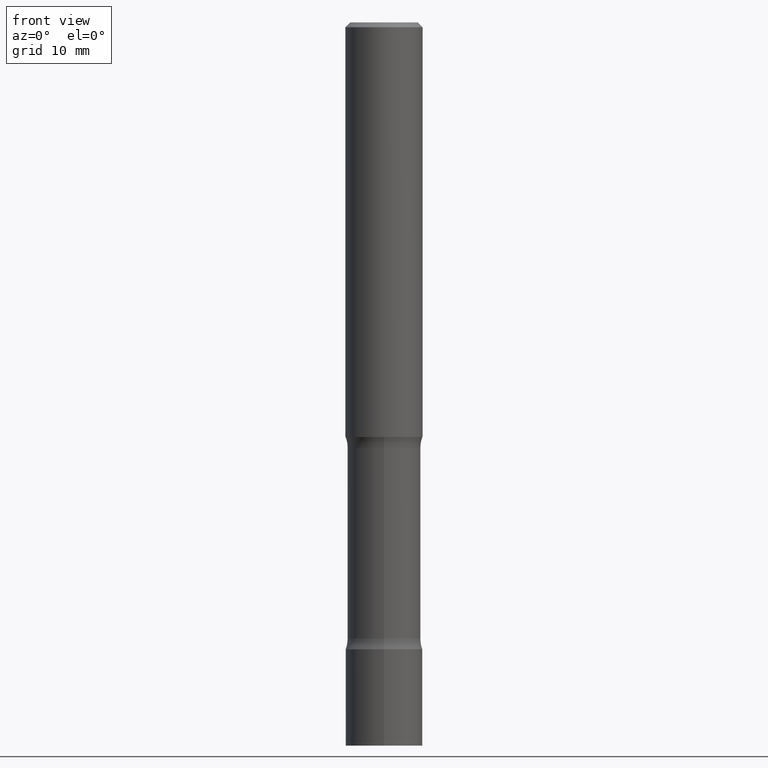
[diagram: clean part render]
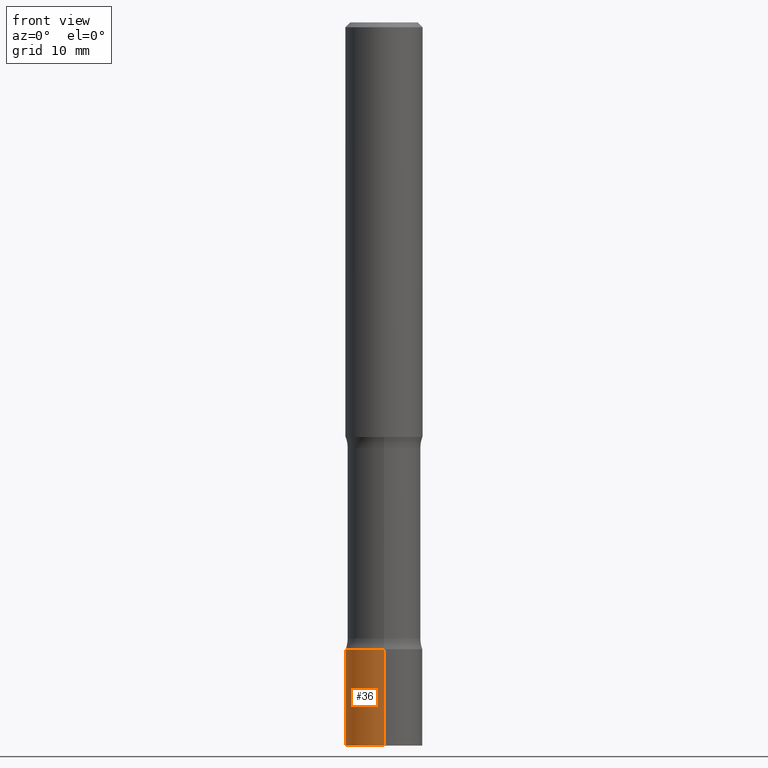
[diagram: same view with one face highlighted and labeled with its STEP entity id]
A machine part, front view. The second image highlights one B-rep face of the part: STEP entity #36.
In plain terms, the highlighted cylindrical surface (partial cylindrical patch) has radius 4.0005 mm, axis along (-0, 0, 1).
Its self-contained STEP definition (entity closure, byte-faithful):
#16 = ORIENTED_EDGE ( 'NONE', *, *, #503, .T. ) ;
#36 = ADVANCED_FACE ( 'NONE', ( #459 ), #493, .T. ) ;
#41 = CARTESIAN_POINT ( 'NONE',  ( -1.099816621735586494E-15, -0.1574999999999999456, 5.498613975020886768E-16 ) ) ;
#57 = DIRECTION ( 'NONE',  ( -2.445676802554542366E-29, 3.491183476203738463E-15, 1.000000000000000000 ) ) ;
#72 = VECTOR ( 'NONE', #159, 39.37007874015748143 ) ;
#82 = DIRECTION ( 'NONE',  ( -2.445676802554542646E-29, 3.491183476203738463E-15, 1.000000000000000000 ) ) ;
#109 = DIRECTION ( 'NONE',  ( -2.445676802554542366E-29, 3.491183476203738463E-15, 1.000000000000000000 ) ) ;
#111 = DIRECTION ( 'NONE',  ( -6.982962677686265922E-15, -1.000000000000000000, 3.491183476203738857E-15 ) ) ;
#120 = EDGE_CURVE ( 'NONE', #480, #462, #228, .T. ) ;
#157 = CARTESIAN_POINT ( 'NONE',  ( -1.099816621735514116E-15, -0.1575000000000102707, -2.952799999999998981 ) ) ;
#159 = DIRECTION ( 'NONE',  ( -2.445676802554542646E-29, 3.491183476203738463E-15, 1.000000000000000000 ) ) ;
#178 = CIRCLE ( 'NONE', #494, 0.1574999999999999456 ) ;
#209 = CARTESIAN_POINT ( 'NONE',  ( 1.119104808822229587E-15, 0.1574999999999910083, -2.559099999999999486 ) ) ;
#228 = LINE ( 'NONE', #506, #72 ) ;
#238 = EDGE_CURVE ( 'NONE', #462, #431, #178, .T. ) ;
#288 = LINE ( 'NONE', #41, #487 ) ;
#340 = EDGE_LOOP ( 'NONE', ( #375, #16, #483, #485 ) ) ;
#344 = CARTESIAN_POINT ( 'NONE',  ( 0.000000000000000000, 0.000000000000000000, 0.000000000000000000 ) ) ;
#346 = CIRCLE ( 'NONE', #377, 0.1574999999999999456 ) ;
#357 = DIRECTION ( 'NONE',  ( -6.982962677686265922E-15, -1.000000000000000000, 3.469013325287954477E-15 ) ) ;
#361 = CARTESIAN_POINT ( 'NONE',  ( 6.258731505417325033E-29, -8.934287633952984269E-15, -2.559099999999999042 ) ) ;
#362 = VERTEX_POINT ( 'NONE', #157 ) ;
#367 = CARTESIAN_POINT ( 'NONE',  ( 1.119104808822224657E-15, 0.1574999999999896483, -2.952800000000000313 ) ) ;
#375 = ORIENTED_EDGE ( 'NONE', *, *, #120, .F. ) ;
#377 = AXIS2_PLACEMENT_3D ( 'NONE', #479, #57, #415 ) ;
#399 = CARTESIAN_POINT ( 'NONE',  ( -1.099816621735523977E-15, -0.1575000000000089106, -2.559099999999998598 ) ) ;
#409 = DIRECTION ( 'NONE',  ( -2.445676802554542366E-29, 3.491183476203738463E-15, 1.000000000000000000 ) ) ;
#415 = DIRECTION ( 'NONE',  ( -6.982962677686265922E-15, -1.000000000000000000, 3.469013325287954477E-15 ) ) ;
#431 = VERTEX_POINT ( 'NONE', #399 ) ;
#432 = EDGE_CURVE ( 'NONE', #362, #431, #288, .T. ) ;
#452 = AXIS2_PLACEMENT_3D ( 'NONE', #344, #109, #111 ) ;
#459 = FACE_OUTER_BOUND ( 'NONE', #340, .T. ) ;
#462 = VERTEX_POINT ( 'NONE', #209 ) ;
#479 = CARTESIAN_POINT ( 'NONE',  ( 7.221594462583051654E-29, -1.030876656853439613E-14, -2.952799999999999869 ) ) ;
#480 = VERTEX_POINT ( 'NONE', #367 ) ;
#483 = ORIENTED_EDGE ( 'NONE', *, *, #432, .T. ) ;
#485 = ORIENTED_EDGE ( 'NONE', *, *, #238, .F. ) ;
#487 = VECTOR ( 'NONE', #82, 39.37007874015748143 ) ;
#493 = CYLINDRICAL_SURFACE ( 'NONE', #452, 0.1574999999999999456 ) ;
#494 = AXIS2_PLACEMENT_3D ( 'NONE', #361, #409, #357 ) ;
#503 = EDGE_CURVE ( 'NONE', #480, #362, #346, .T. ) ;
#506 = CARTESIAN_POINT ( 'NONE',  ( 1.119104808822157209E-15, 0.1574999999999999456, -5.498613975020886768E-16 ) ) ;